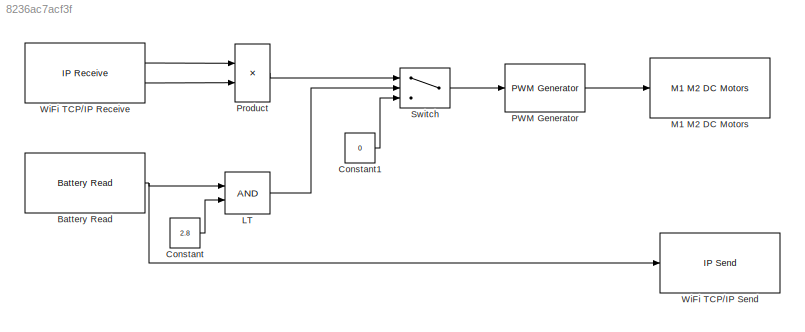
MODEL slx_8236ac7acf3f
KIND model
CONFIG AbsTol = auto
CONFIG EnableMultiTasking = off
CONFIG FixedStep = auto
CONFIG MaxStep = auto
CONFIG MinStep = auto
CONFIG RelTol = 1e-3
CONFIG SampleTimeConstraint = Unconstrained
CONFIG SolverName = VariableStepAuto
CONFIG StartTime = 0.0
CONFIG StopTime = 10.0
BLOCK [Reference] Battery Read  REF=arduinomotorcarrierlib/Battery Read
  Ports = [0, 1]
  SourceBlock = arduinomotorcarrierlib/Battery Read
  SourceProductBaseCode = ARDUINO
  SourceType = motorcarrier.blocks.mkrmotorcarrier_Battery
BLOCK [Constant] Constant
  Value = 2.8
BLOCK [Constant] Constant1
  Value = 0
BLOCK [RelationalOperator] LT
  InputSameDT = off
  OutDataTypeStr = boolean
  Ports = [2, 1]
  RndMeth = Simplest
BLOCK [Reference] M1 M2 DC Motors  REF=arduinomotorcarrierlib/M1 M2 DC Motors
  Ports = [1]
  SourceBlock = arduinomotorcarrierlib/M1 M2 DC Motors
  SourceProductBaseCode = ARDUINO
  SourceType = DC Motor
BLOCK [Reference] PWM Generator  REF=eePwmGenerator/PWM Generator
  Ports = [1, 1]
  SourceBlock = eePwmGenerator/PWM Generator
  SourceProductBaseCode = PS
  SourceType = PWM Generator
BLOCK [Product] Product
  Ports = [2, 1]
BLOCK [Switch] Switch
  Criteria = u2 > Threshold
  InputSameDT = off
  SaturateOnIntegerOverflow = off
BLOCK [Reference] WiFi TCP//IP Receive  REF=arduinowifilib/WiFi TCP//IP Receive
  Ports = [0, 2]
  SourceBlock = arduinowifilib/WiFi TCP//IP Receive
  SourceProductBaseCode = ARDUINO
  SourceType = Arduino WiFi TCP Receive
BLOCK [Reference] WiFi TCP//IP Send  REF=arduinowifilib/WiFi TCP//IP Send
  Ports = [1]
  SourceBlock = arduinowifilib/WiFi TCP//IP Send
  SourceProductBaseCode = ARDUINO
  SourceType = Arduino WiFi TCP Send
NET Battery Read:1 -> LT:1, WiFi TCP//IP Send:1
LINE Constant1:1 -> Switch:3
LINE Constant:1 -> LT:2
LINE LT:1 -> Switch:2
LINE PWM Generator:1 -> M1 M2 DC Motors:1
LINE Product:1 -> Switch:1
LINE Switch:1 -> PWM Generator:1
LINE WiFi TCP//IP Receive:1 -> Product:1
LINE WiFi TCP//IP Receive:2 -> Product:2
note: NET lines group one-source signal fan-out (src -> all destinations, sorted); 1:1 wires keep LINE
